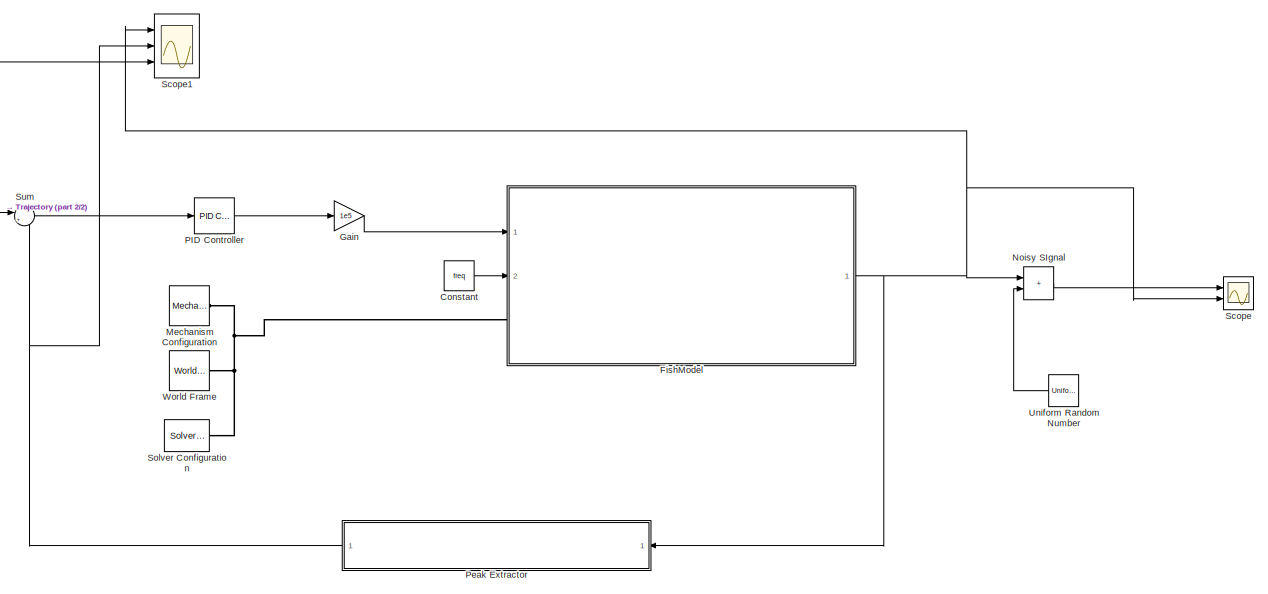
[diagram: root canvas - part 1/2, center side, full height]
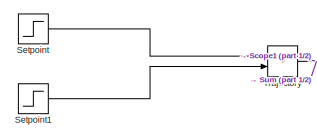
[diagram: root canvas - part 2/2, middle left region]
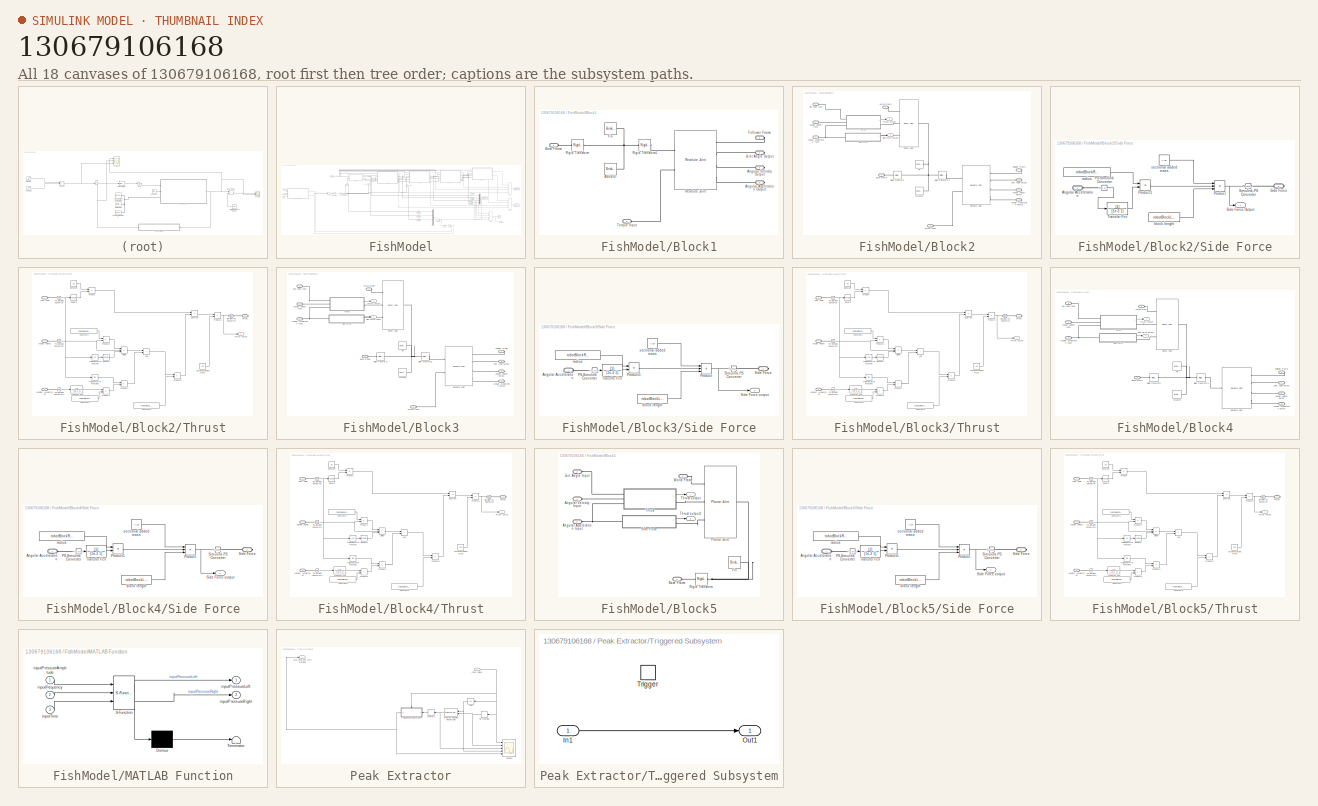
[diagram: thumbnail index - all 18 canvases of the model, root first then tree order]
MODEL slx_130679106168
KIND model
CONFIG AbsTol = auto
CONFIG EnableMultiTasking = off
CONFIG FixedStep = 1e-4
CONFIG InitFcn = initSoftFishHydrodynamicControl
CONFIG MaxStep = auto
CONFIG MinStep = auto
CONFIG RelTol = 1e-5
CONFIG SampleTimeConstraint = Unconstrained
CONFIG Solver = VariableStepAuto
CONFIG SolverName = VariableStepAuto
CONFIG StartTime = 0.0
CONFIG StopTime = 40
BLOCK [Constant] Constant
  Value = freq
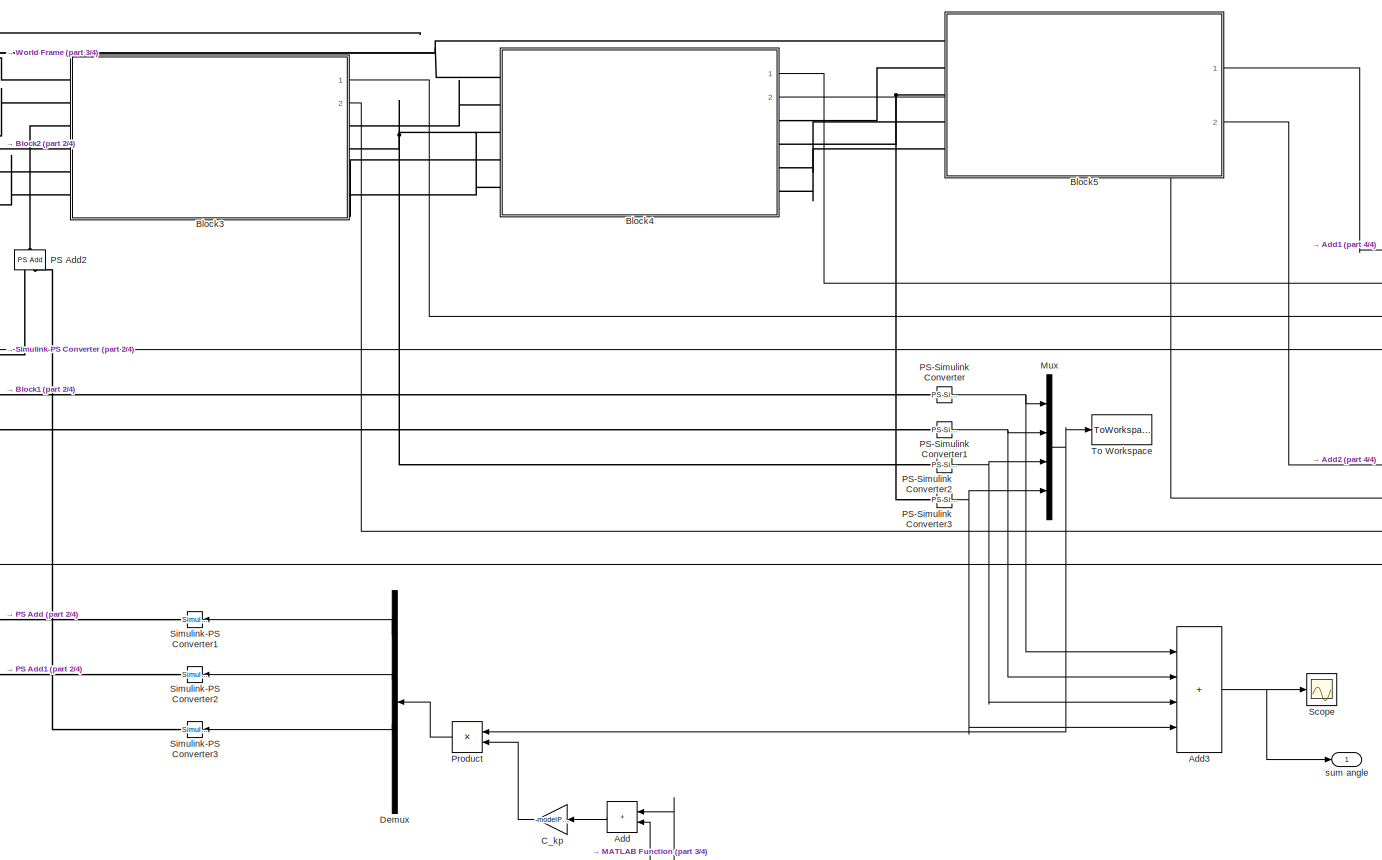
[diagram: FishModel - part 1/4, right side, full height]
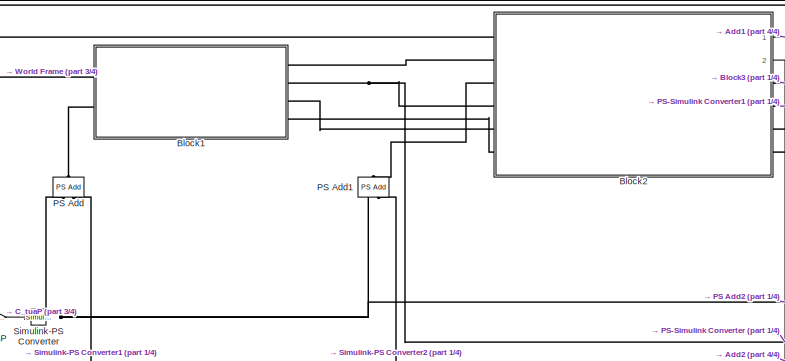
[diagram: FishModel - part 2/4, top center region]
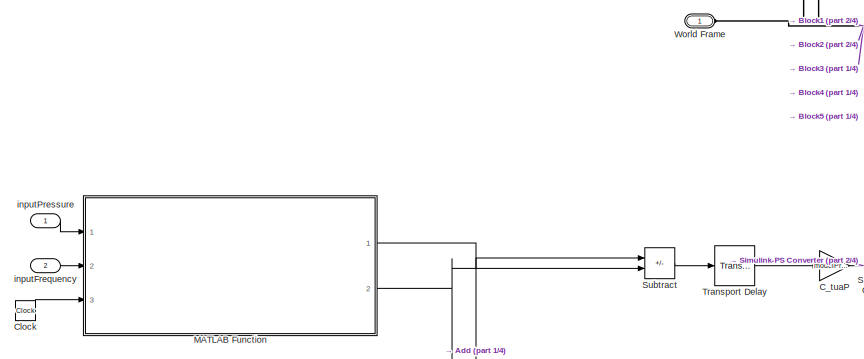
[diagram: FishModel - part 3/4, top left region]
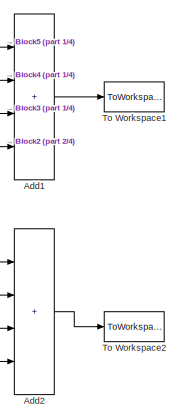
[diagram: FishModel - part 4/4, middle right region]
BLOCK [SubSystem] FishModel
  Ports = [2, 1, 0, 0, 0, 1]
  RequestExecContextInheritance = off
BLOCK [Sum] FishModel/Add
  IconShape = rectangular
  Ports = [2, 1]
BLOCK [Sum] FishModel/Add1
  IconShape = rectangular
  Inputs = ++++
  Ports = [4, 1]
BLOCK [Sum] FishModel/Add2
  IconShape = rectangular
  Inputs = ++++
  Ports = [4, 1]
BLOCK [Sum] FishModel/Add3
  IconShape = rectangular
  Inputs = ++++
  Ports = [4, 1]
BLOCK [SubSystem] FishModel/Block1
  Ports = [0, 0, 0, 0, 0, 2, 4]
  RequestExecContextInheritance = off
BLOCK [Reference] FishModel/Block1/Actuator  REF=sm_lib/Body Elements/Brick Solid
  Ports = [0, 0, 0, 0, 0, 0, 1]
  SourceBlock = sm_lib/Body Elements/Brick Solid
  SourceProductBaseCode = MS
  SourceType = Brick Solid
BLOCK [PMIOPort] FishModel/Block1/Angular Acceleration Output
  Port = 6
  Side = Right
BLOCK [PMIOPort] FishModel/Block1/Angular Velocity Output
  Port = 5
  Side = Right
BLOCK [PMIOPort] FishModel/Block1/Base Frame
  Side = Left
BLOCK [Reference] FishModel/Block1/Fin  REF=sm_lib/Body Elements/Brick Solid
  Ports = [0, 0, 0, 0, 0, 0, 1]
  SourceBlock = sm_lib/Body Elements/Brick Solid
  SourceProductBaseCode = MS
  SourceType = Brick Solid
BLOCK [PMIOPort] FishModel/Block1/Follower Frame
  Port = 2
  Side = Right
BLOCK [PMIOPort] FishModel/Block1/Joint Angle Output 
  Port = 4
  Side = Right
BLOCK [Reference] FishModel/Block1/Revolute Joint  REF=sm_lib/Joints/Revolute Joint
  Ports = [0, 0, 0, 0, 0, 2, 4]
  SourceBlock = sm_lib/Joints/Revolute Joint
  SourceProductBaseCode = MS
  SourceType = Revolute Joint
BLOCK [Reference] FishModel/Block1/Rigid Transform  REF=sm_lib/Frames and
Transforms/Rigid
Transform
  Ports = [0, 0, 0, 0, 0, 1, 1]
  SourceBlock = sm_lib/Frames and\nTransforms/Rigid\nTransform
  SourceProductBaseCode = MS
  SourceType = Rigid\nTransform
BLOCK [Reference] FishModel/Block1/Rigid Transform1  REF=sm_lib/Frames and
Transforms/Rigid
Transform
  Ports = [0, 0, 0, 0, 0, 1, 1]
  SourceBlock = sm_lib/Frames and\nTransforms/Rigid\nTransform
  SourceProductBaseCode = MS
  SourceType = Rigid\nTransform
BLOCK [PMIOPort] FishModel/Block1/Torque Input
  Port = 3
  Side = Left
BLOCK [SubSystem] FishModel/Block2
  PortSchema = {"entries":[{"content":{"sides":[{"content":{"connectorIds":["LConn1","LConn2","LConn3","LConn4","LConn5","LConn6"]},"type":"ConnectorPlacement.EquallySpacedRectSide","uuid":"5ebc700c-e1a0-4781-b293-4c4f671d1d7d"},{"content":{"connectorIds":["RConn1","RConn2","RConn3","RConn4","Out1","Out2"],"side":"RIGHT"},"type":"ConnectorPlacement.EquallySpacedRectSide","uuid":"b92a1279-a400-488f-b4a5-473275b38...<+333ch>
  Ports = [0, 2, 0, 0, 0, 6, 4]
  RequestExecContextInheritance = off
BLOCK [Reference] FishModel/Block2/Actuator  REF=sm_lib/Body Elements/Brick Solid
  Ports = [0, 0, 0, 0, 0, 0, 1]
  SourceBlock = sm_lib/Body Elements/Brick Solid
  SourceProductBaseCode = MS
  SourceType = Brick Solid
BLOCK [PMIOPort] FishModel/Block2/Angular Acceleration Input
  Port = 6
  Side = Left
BLOCK [PMIOPort] FishModel/Block2/Angular Acceleration Output
  Port = 10
  Side = Right
BLOCK [PMIOPort] FishModel/Block2/Angular Velocity Input
  Port = 5
  Side = Left
BLOCK [PMIOPort] FishModel/Block2/Angular Velocity Outpur
  Port = 9
  Side = Right
BLOCK [PMIOPort] FishModel/Block2/Base Frame
  Port = 2
  Side = Left
BLOCK [Reference] FishModel/Block2/Fin  REF=sm_lib/Body Elements/Brick Solid
  Ports = [0, 0, 0, 0, 0, 0, 1]
  SourceBlock = sm_lib/Body Elements/Brick Solid
  SourceProductBaseCode = MS
  SourceType = Brick Solid
BLOCK [PMIOPort] FishModel/Block2/Follower Frame
  Port = 7
  Side = Right
BLOCK [PMIOPort] FishModel/Block2/Join Angle Input
  Port = 4
  Side = Left
BLOCK [PMIOPort] FishModel/Block2/Joint Angle Output 
  Port = 8
  Side = Right
BLOCK [Reference] FishModel/Block2/Planar Joint  REF=sm_lib/Joints/Planar Joint
  Ports = [0, 0, 0, 0, 0, 3, 1]
  SourceBlock = sm_lib/Joints/Planar Joint
  SourceProductBaseCode = MS
  SourceType = Planar Joint
BLOCK [Reference] FishModel/Block2/Revolute Joint  REF=sm_lib/Joints/Revolute Joint
  Ports = [0, 0, 0, 0, 0, 2, 4]
  SourceBlock = sm_lib/Joints/Revolute Joint
  SourceProductBaseCode = MS
  SourceType = Revolute Joint
BLOCK [Reference] FishModel/Block2/Rigid Transform  REF=sm_lib/Frames and
Transforms/Rigid
Transform
  Ports = [0, 0, 0, 0, 0, 1, 1]
  SourceBlock = sm_lib/Frames and\nTransforms/Rigid\nTransform
  SourceProductBaseCode = MS
  SourceType = Rigid\nTransform
BLOCK [Reference] FishModel/Block2/Rigid Transform1  REF=sm_lib/Frames and
Transforms/Rigid
Transform
  Ports = [0, 0, 0, 0, 0, 1, 1]
  SourceBlock = sm_lib/Frames and\nTransforms/Rigid\nTransform
  SourceProductBaseCode = MS
  SourceType = Rigid\nTransform
BLOCK [SubSystem] FishModel/Block2/Side Force
  Ports = [0, 1, 0, 0, 0, 1, 1]
  RequestExecContextInheritance = off
BLOCK [Outport] FishModel/Block2/Side Force Output
  Port = 2
BLOCK [PMIOPort] FishModel/Block2/Side Force/Angular Acceleration
  Side = Left
BLOCK [Reference] FishModel/Block2/Side Force/PS-Simulink Converter  REF=nesl_utility/PS-Simulink
Converter
  Ports = [0, 1, 0, 0, 0, 1]
  SourceBlock = nesl_utility/PS-Simulink\nConverter
  SourceProductBaseCode = SS
  SourceType = PS-Simulink\nConverter
BLOCK [Product] FishModel/Block2/Side Force/Product
  Inputs = 3
  Ports = [3, 1]
BLOCK [Product] FishModel/Block2/Side Force/Product1
  Ports = [2, 1]
BLOCK [PMIOPort] FishModel/Block2/Side Force/Side Force
  Port = 2
  Side = Right
BLOCK [Outport] FishModel/Block2/Side Force/Side Force Output
BLOCK [Reference] FishModel/Block2/Side Force/Simulink-PS Converter  REF=nesl_utility/Simulink-PS
Converter
  Ports = [1, 0, 0, 0, 0, 0, 1]
  SourceBlock = nesl_utility/Simulink-PS\nConverter
  SourceProductBaseCode = SS
  SourceType = Simulink-PS\nConverter
BLOCK [TransferFcn] FishModel/Block2/Side Force/Transfer Fcn
  Denominator = [1e-3 1]
BLOCK [Constant] FishModel/Block2/Side Force/block length
  Value = robotBlockLength
BLOCK [Constant] FishModel/Block2/Side Force/radius
  Value = robotBlockRevoluteRadius
BLOCK [Constant] FishModel/Block2/Side Force/sectional added mass
  Value = -A33
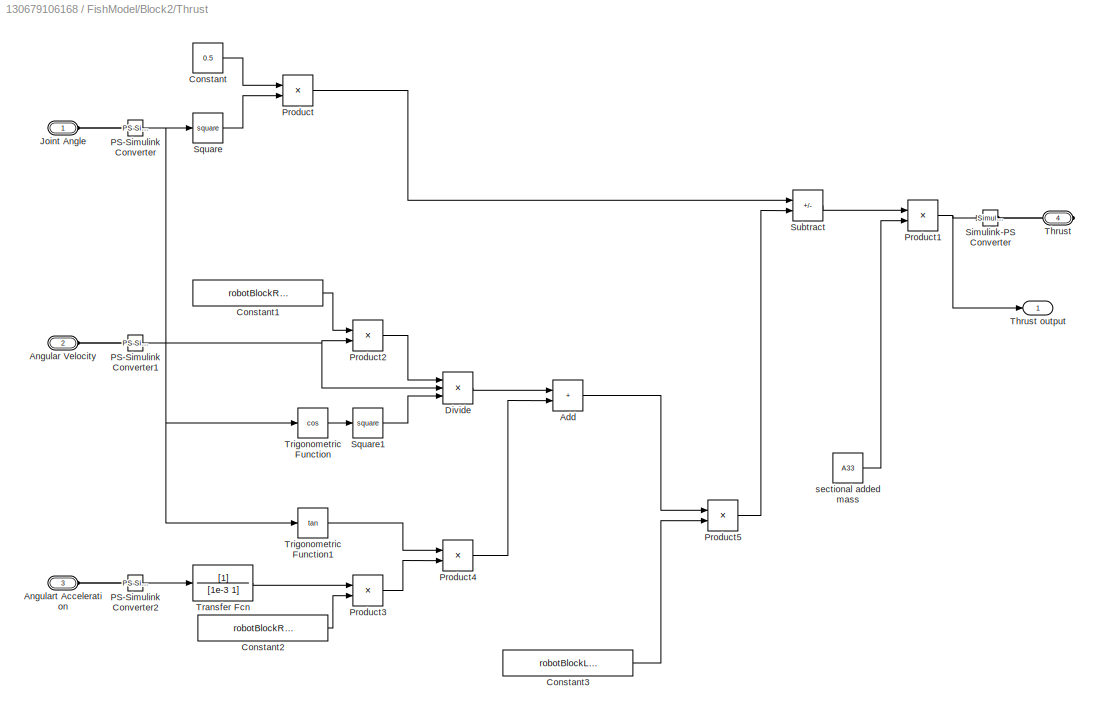
BLOCK [SubSystem] FishModel/Block2/Thrust
  Ports = [0, 1, 0, 0, 0, 3, 1]
  RequestExecContextInheritance = off
BLOCK [Outport] FishModel/Block2/Thrust output
BLOCK [Sum] FishModel/Block2/Thrust/Add
  IconShape = rectangular
  Ports = [2, 1]
BLOCK [PMIOPort] FishModel/Block2/Thrust/Angular Velocity
  Port = 2
  Side = Left
BLOCK [PMIOPort] FishModel/Block2/Thrust/Angulart Acceleration
  Port = 3
  Side = Left
BLOCK [Constant] FishModel/Block2/Thrust/Constant
  Value = 0.5
BLOCK [Constant] FishModel/Block2/Thrust/Constant1
  Value = robotBlockRevoluteRadius
BLOCK [Constant] FishModel/Block2/Thrust/Constant2
  Value = robotBlockRevoluteRadius
BLOCK [Constant] FishModel/Block2/Thrust/Constant3
  Value = robotBlockLength
BLOCK [Product] FishModel/Block2/Thrust/Divide
  Inputs = **/
  Ports = [3, 1]
BLOCK [PMIOPort] FishModel/Block2/Thrust/Joint Angle
  Side = Left
BLOCK [Reference] FishModel/Block2/Thrust/PS-Simulink Converter  REF=nesl_utility/PS-Simulink
Converter
  Ports = [0, 1, 0, 0, 0, 1]
  SourceBlock = nesl_utility/PS-Simulink\nConverter
  SourceProductBaseCode = SS
  SourceType = PS-Simulink\nConverter
BLOCK [Reference] FishModel/Block2/Thrust/PS-Simulink Converter1  REF=nesl_utility/PS-Simulink
Converter
  Ports = [0, 1, 0, 0, 0, 1]
  SourceBlock = nesl_utility/PS-Simulink\nConverter
  SourceProductBaseCode = SS
  SourceType = PS-Simulink\nConverter
BLOCK [Reference] FishModel/Block2/Thrust/PS-Simulink Converter2  REF=nesl_utility/PS-Simulink
Converter
  Ports = [0, 1, 0, 0, 0, 1]
  SourceBlock = nesl_utility/PS-Simulink\nConverter
  SourceProductBaseCode = SS
  SourceType = PS-Simulink\nConverter
BLOCK [Product] FishModel/Block2/Thrust/Product
  Ports = [2, 1]
BLOCK [Product] FishModel/Block2/Thrust/Product1
  Ports = [2, 1]
BLOCK [Product] FishModel/Block2/Thrust/Product2
  Ports = [2, 1]
BLOCK [Product] FishModel/Block2/Thrust/Product3
  Ports = [2, 1]
BLOCK [Product] FishModel/Block2/Thrust/Product4
  Ports = [2, 1]
BLOCK [Product] FishModel/Block2/Thrust/Product5
  Ports = [2, 1]
BLOCK [Reference] FishModel/Block2/Thrust/Simulink-PS Converter  REF=nesl_utility/Simulink-PS
Converter
  Ports = [1, 0, 0, 0, 0, 0, 1]
  SourceBlock = nesl_utility/Simulink-PS\nConverter
  SourceProductBaseCode = SS
  SourceType = Simulink-PS\nConverter
BLOCK [Math] FishModel/Block2/Thrust/Square
  Operator = square
  Ports = [1, 1]
BLOCK [Math] FishModel/Block2/Thrust/Square1
  Operator = square
  Ports = [1, 1]
BLOCK [Sum] FishModel/Block2/Thrust/Subtract
  IconShape = rectangular
  Inputs = +-
  Ports = [2, 1]
BLOCK [PMIOPort] FishModel/Block2/Thrust/Thrust
  Port = 4
  Side = Right
BLOCK [Outport] FishModel/Block2/Thrust/Thrust output
BLOCK [TransferFcn] FishModel/Block2/Thrust/Transfer Fcn
  Denominator = [1e-3 1]
BLOCK [Trigonometry] FishModel/Block2/Thrust/Trigonometric Function
  Operator = cos
  Ports = [1, 1]
BLOCK [Trigonometry] FishModel/Block2/Thrust/Trigonometric Function1
  Operator = tan
  Ports = [1, 1]
BLOCK [Constant] FishModel/Block2/Thrust/sectional added mass
  Value = A33
BLOCK [PMIOPort] FishModel/Block2/Torque Input
  Port = 3
  Side = Left
BLOCK [PMIOPort] FishModel/Block2/World Frame
  Side = Left
BLOCK [SubSystem] FishModel/Block3
  PortSchema = {"entries":[{"content":{"sides":[{"content":{"connectorIds":["LConn1","LConn2","LConn3","LConn4","LConn5","LConn6"]},"type":"ConnectorPlacement.EquallySpacedRectSide","uuid":"4bf02832-9aaa-445d-b17a-b47938d968bc"},{"content":{"connectorIds":["RConn1","RConn2","RConn3","RConn4","Out1","Out2"],"side":"RIGHT"},"type":"ConnectorPlacement.EquallySpacedRectSide","uuid":"5c54c9be-a256-435b-a4c8-a301a8a71...<+333ch>
  Ports = [0, 2, 0, 0, 0, 6, 4]
  RequestExecContextInheritance = off
BLOCK [Reference] FishModel/Block3/Actuator  REF=sm_lib/Body Elements/Brick Solid
  Ports = [0, 0, 0, 0, 0, 0, 1]
  SourceBlock = sm_lib/Body Elements/Brick Solid
  SourceProductBaseCode = MS
  SourceType = Brick Solid
BLOCK [PMIOPort] FishModel/Block3/Angular Acceleration Input
  Port = 6
  Side = Left
BLOCK [PMIOPort] FishModel/Block3/Angular Acceleration Output
  Port = 10
  Side = Right
BLOCK [PMIOPort] FishModel/Block3/Angular Velocity Input
  Port = 5
  Side = Left
BLOCK [PMIOPort] FishModel/Block3/Angular Velocity Outpur
  Port = 9
  Side = Right
BLOCK [PMIOPort] FishModel/Block3/Base Frame
  Port = 2
  Side = Left
BLOCK [Reference] FishModel/Block3/Fin  REF=sm_lib/Body Elements/Brick Solid
  Ports = [0, 0, 0, 0, 0, 0, 1]
  SourceBlock = sm_lib/Body Elements/Brick Solid
  SourceProductBaseCode = MS
  SourceType = Brick Solid
BLOCK [PMIOPort] FishModel/Block3/Follower Frame
  Port = 7
  Side = Right
BLOCK [PMIOPort] FishModel/Block3/Join Angle Input
  Port = 4
  Side = Left
BLOCK [PMIOPort] FishModel/Block3/Joint Angle Output 
  Port = 8
  Side = Right
BLOCK [Reference] FishModel/Block3/Planar Joint  REF=sm_lib/Joints/Planar Joint
  Ports = [0, 0, 0, 0, 0, 3, 1]
  SourceBlock = sm_lib/Joints/Planar Joint
  SourceProductBaseCode = MS
  SourceType = Planar Joint
BLOCK [Reference] FishModel/Block3/Revolute Joint  REF=sm_lib/Joints/Revolute Joint
  Ports = [0, 0, 0, 0, 0, 2, 4]
  SourceBlock = sm_lib/Joints/Revolute Joint
  SourceProductBaseCode = MS
  SourceType = Revolute Joint
BLOCK [Reference] FishModel/Block3/Rigid Transform  REF=sm_lib/Frames and
Transforms/Rigid
Transform
  Ports = [0, 0, 0, 0, 0, 1, 1]
  SourceBlock = sm_lib/Frames and\nTransforms/Rigid\nTransform
  SourceProductBaseCode = MS
  SourceType = Rigid\nTransform
BLOCK [Reference] FishModel/Block3/Rigid Transform1  REF=sm_lib/Frames and
Transforms/Rigid
Transform
  Ports = [0, 0, 0, 0, 0, 1, 1]
  SourceBlock = sm_lib/Frames and\nTransforms/Rigid\nTransform
  SourceProductBaseCode = MS
  SourceType = Rigid\nTransform
BLOCK [SubSystem] FishModel/Block3/Side Force
  Ports = [0, 1, 0, 0, 0, 1, 1]
  RequestExecContextInheritance = off
BLOCK [Outport] FishModel/Block3/Side Force Ouput
  Port = 2
BLOCK [PMIOPort] FishModel/Block3/Side Force/Angular Acceleration
  Side = Left
BLOCK [Reference] FishModel/Block3/Side Force/PS-Simulink Converter  REF=nesl_utility/PS-Simulink
Converter
  Ports = [0, 1, 0, 0, 0, 1]
  SourceBlock = nesl_utility/PS-Simulink\nConverter
  SourceProductBaseCode = SS
  SourceType = PS-Simulink\nConverter
BLOCK [Product] FishModel/Block3/Side Force/Product
  Inputs = 3
  Ports = [3, 1]
BLOCK [Product] FishModel/Block3/Side Force/Product1
  Ports = [2, 1]
BLOCK [PMIOPort] FishModel/Block3/Side Force/Side Force
  Port = 2
  Side = Right
BLOCK [Outport] FishModel/Block3/Side Force/Side Force output
BLOCK [Reference] FishModel/Block3/Side Force/Simulink-PS Converter  REF=nesl_utility/Simulink-PS
Converter
  Ports = [1, 0, 0, 0, 0, 0, 1]
  SourceBlock = nesl_utility/Simulink-PS\nConverter
  SourceProductBaseCode = SS
  SourceType = Simulink-PS\nConverter
BLOCK [TransferFcn] FishModel/Block3/Side Force/Transfer Fcn
  Denominator = [1e-3 1]
BLOCK [Constant] FishModel/Block3/Side Force/block length
  Value = robotBlockLength
BLOCK [Constant] FishModel/Block3/Side Force/radius
  Value = robotBlockRevoluteRadius
BLOCK [Constant] FishModel/Block3/Side Force/sectional added mass
  Value = -A33
BLOCK [SubSystem] FishModel/Block3/Thrust
  Ports = [0, 1, 0, 0, 0, 3, 1]
  RequestExecContextInheritance = off
BLOCK [Outport] FishModel/Block3/Thrust output
BLOCK [Sum] FishModel/Block3/Thrust/Add
  IconShape = rectangular
  Ports = [2, 1]
BLOCK [PMIOPort] FishModel/Block3/Thrust/Angular Velocity
  Port = 2
  Side = Left
BLOCK [PMIOPort] FishModel/Block3/Thrust/Angulart Acceleration
  Port = 3
  Side = Left
BLOCK [Constant] FishModel/Block3/Thrust/Constant
  Value = 0.5
BLOCK [Constant] FishModel/Block3/Thrust/Constant1
  Value = robotBlockRevoluteRadius
BLOCK [Constant] FishModel/Block3/Thrust/Constant2
  Value = robotBlockRevoluteRadius
BLOCK [Constant] FishModel/Block3/Thrust/Constant3
  Value = robotBlockLength
BLOCK [Product] FishModel/Block3/Thrust/Divide
  Inputs = **/
  Ports = [3, 1]
BLOCK [PMIOPort] FishModel/Block3/Thrust/Joint Angle
  Side = Left
BLOCK [Reference] FishModel/Block3/Thrust/PS-Simulink Converter  REF=nesl_utility/PS-Simulink
Converter
  Ports = [0, 1, 0, 0, 0, 1]
  SourceBlock = nesl_utility/PS-Simulink\nConverter
  SourceProductBaseCode = SS
  SourceType = PS-Simulink\nConverter
BLOCK [Reference] FishModel/Block3/Thrust/PS-Simulink Converter1  REF=nesl_utility/PS-Simulink
Converter
  Ports = [0, 1, 0, 0, 0, 1]
  SourceBlock = nesl_utility/PS-Simulink\nConverter
  SourceProductBaseCode = SS
  SourceType = PS-Simulink\nConverter
BLOCK [Reference] FishModel/Block3/Thrust/PS-Simulink Converter2  REF=nesl_utility/PS-Simulink
Converter
  Ports = [0, 1, 0, 0, 0, 1]
  SourceBlock = nesl_utility/PS-Simulink\nConverter
  SourceProductBaseCode = SS
  SourceType = PS-Simulink\nConverter
BLOCK [Product] FishModel/Block3/Thrust/Product
  Ports = [2, 1]
BLOCK [Product] FishModel/Block3/Thrust/Product1
  Ports = [2, 1]
BLOCK [Product] FishModel/Block3/Thrust/Product2
  Ports = [2, 1]
BLOCK [Product] FishModel/Block3/Thrust/Product3
  Ports = [2, 1]
BLOCK [Product] FishModel/Block3/Thrust/Product4
  Ports = [2, 1]
BLOCK [Product] FishModel/Block3/Thrust/Product5
  Ports = [2, 1]
BLOCK [Reference] FishModel/Block3/Thrust/Simulink-PS Converter  REF=nesl_utility/Simulink-PS
Converter
  Ports = [1, 0, 0, 0, 0, 0, 1]
  SourceBlock = nesl_utility/Simulink-PS\nConverter
  SourceProductBaseCode = SS
  SourceType = Simulink-PS\nConverter
BLOCK [Math] FishModel/Block3/Thrust/Square
  Operator = square
  Ports = [1, 1]
BLOCK [Math] FishModel/Block3/Thrust/Square1
  Operator = square
  Ports = [1, 1]
BLOCK [Sum] FishModel/Block3/Thrust/Subtract
  IconShape = rectangular
  Inputs = +-
  Ports = [2, 1]
BLOCK [PMIOPort] FishModel/Block3/Thrust/Thrust
  Port = 4
  Side = Right
BLOCK [Outport] FishModel/Block3/Thrust/Thrust output
BLOCK [TransferFcn] FishModel/Block3/Thrust/Transfer Fcn
  Denominator = [1e-3 1]
BLOCK [Trigonometry] FishModel/Block3/Thrust/Trigonometric Function
  Operator = cos
  Ports = [1, 1]
BLOCK [Trigonometry] FishModel/Block3/Thrust/Trigonometric Function1
  Operator = tan
  Ports = [1, 1]
BLOCK [Constant] FishModel/Block3/Thrust/sectional added mass
  Value = A33
BLOCK [PMIOPort] FishModel/Block3/Torque Input
  Port = 3
  Side = Left
BLOCK [PMIOPort] FishModel/Block3/World Frame
  Side = Left
BLOCK [SubSystem] FishModel/Block4
  PortSchema = {"entries":[{"content":{"sides":[{"content":{"connectorIds":["LConn1","LConn2","LConn3","LConn4","LConn5"]},"type":"ConnectorPlacement.EquallySpacedRectSide","uuid":"983de15f-af03-41ca-a1ab-b1d4b5398ede"},{"content":{"connectorIds":["RConn1","RConn2","RConn3","RConn4","Out1","Out2"],"side":"RIGHT"},"type":"ConnectorPlacement.EquallySpacedRectSide","uuid":"e6a9d96e-84e1-42ce-bc33-32721e41e318"},{"c...<+324ch>
  Ports = [0, 2, 0, 0, 0, 5, 4]
  RequestExecContextInheritance = off
BLOCK [Reference] FishModel/Block4/Actuator  REF=sm_lib/Body Elements/Brick Solid
  Ports = [0, 0, 0, 0, 0, 0, 1]
  SourceBlock = sm_lib/Body Elements/Brick Solid
  SourceProductBaseCode = MS
  SourceType = Brick Solid
BLOCK [PMIOPort] FishModel/Block4/Angular Acceleration Input
  Port = 5
  Side = Left
BLOCK [PMIOPort] FishModel/Block4/Angular Acceleration Output
  Port = 9
  Side = Right
BLOCK [PMIOPort] FishModel/Block4/Angular Velocity Input
  Port = 4
  Side = Left
BLOCK [PMIOPort] FishModel/Block4/Angular Velocity Outpur
  Port = 8
  Side = Right
BLOCK [PMIOPort] FishModel/Block4/Base Frame
  Port = 2
  Side = Left
BLOCK [Reference] FishModel/Block4/Fin  REF=sm_lib/Body Elements/Brick Solid
  Ports = [0, 0, 0, 0, 0, 0, 1]
  SourceBlock = sm_lib/Body Elements/Brick Solid
  SourceProductBaseCode = MS
  SourceType = Brick Solid
BLOCK [PMIOPort] FishModel/Block4/Follower Frame
  Port = 6
  Side = Right
BLOCK [PMIOPort] FishModel/Block4/Join Angle Input
  Port = 3
  Side = Left
BLOCK [PMIOPort] FishModel/Block4/Joint Angle Output 
  Port = 7
  Side = Right
BLOCK [Reference] FishModel/Block4/Planar Joint  REF=sm_lib/Joints/Planar Joint
  Ports = [0, 0, 0, 0, 0, 3, 1]
  SourceBlock = sm_lib/Joints/Planar Joint
  SourceProductBaseCode = MS
  SourceType = Planar Joint
BLOCK [Reference] FishModel/Block4/Revolute Joint  REF=sm_lib/Joints/Revolute Joint
  Ports = [0, 0, 0, 0, 0, 1, 4]
  SourceBlock = sm_lib/Joints/Revolute Joint
  SourceProductBaseCode = MS
  SourceType = Revolute Joint
BLOCK [Reference] FishModel/Block4/Rigid Transform  REF=sm_lib/Frames and
Transforms/Rigid
Transform
  Ports = [0, 0, 0, 0, 0, 1, 1]
  SourceBlock = sm_lib/Frames and\nTransforms/Rigid\nTransform
  SourceProductBaseCode = MS
  SourceType = Rigid\nTransform
BLOCK [Reference] FishModel/Block4/Rigid Transform1  REF=sm_lib/Frames and
Transforms/Rigid
Transform
  Ports = [0, 0, 0, 0, 0, 1, 1]
  SourceBlock = sm_lib/Frames and\nTransforms/Rigid\nTransform
  SourceProductBaseCode = MS
  SourceType = Rigid\nTransform
BLOCK [SubSystem] FishModel/Block4/Side Force
  Ports = [0, 1, 0, 0, 0, 1, 1]
  RequestExecContextInheritance = off
BLOCK [Outport] FishModel/Block4/Side Force Output
  Port = 2
BLOCK [PMIOPort] FishModel/Block4/Side Force/Angular Acceleration
  Side = Left
BLOCK [Reference] FishModel/Block4/Side Force/PS-Simulink Converter  REF=nesl_utility/PS-Simulink
Converter
  Ports = [0, 1, 0, 0, 0, 1]
  SourceBlock = nesl_utility/PS-Simulink\nConverter
  SourceProductBaseCode = SS
  SourceType = PS-Simulink\nConverter
BLOCK [Product] FishModel/Block4/Side Force/Product
  Inputs = 3
  Ports = [3, 1]
BLOCK [Product] FishModel/Block4/Side Force/Product1
  Ports = [2, 1]
BLOCK [PMIOPort] FishModel/Block4/Side Force/Side Force
  Port = 2
  Side = Right
BLOCK [Outport] FishModel/Block4/Side Force/Side Force output
BLOCK [Reference] FishModel/Block4/Side Force/Simulink-PS Converter  REF=nesl_utility/Simulink-PS
Converter
  Ports = [1, 0, 0, 0, 0, 0, 1]
  SourceBlock = nesl_utility/Simulink-PS\nConverter
  SourceProductBaseCode = SS
  SourceType = Simulink-PS\nConverter
BLOCK [TransferFcn] FishModel/Block4/Side Force/Transfer Fcn
  Denominator = [1e-3 1]
BLOCK [Constant] FishModel/Block4/Side Force/block length
  Value = robotBlockLength
BLOCK [Constant] FishModel/Block4/Side Force/radius
  Value = robotBlockRevoluteRadius
BLOCK [Constant] FishModel/Block4/Side Force/sectional added mass
  Value = -A33
BLOCK [SubSystem] FishModel/Block4/Thrust
  Ports = [0, 1, 0, 0, 0, 3, 1]
  RequestExecContextInheritance = off
BLOCK [Outport] FishModel/Block4/Thrust output
BLOCK [Sum] FishModel/Block4/Thrust/Add
  IconShape = rectangular
  Ports = [2, 1]
BLOCK [PMIOPort] FishModel/Block4/Thrust/Angular Velocity
  Port = 2
  Side = Left
BLOCK [PMIOPort] FishModel/Block4/Thrust/Angulart Acceleration
  Port = 3
  Side = Left
BLOCK [Constant] FishModel/Block4/Thrust/Constant
  Value = 0.5
BLOCK [Constant] FishModel/Block4/Thrust/Constant1
  Value = robotBlockRevoluteRadius
BLOCK [Constant] FishModel/Block4/Thrust/Constant2
  Value = robotBlockRevoluteRadius
BLOCK [Constant] FishModel/Block4/Thrust/Constant3
  Value = robotBlockLength
BLOCK [Product] FishModel/Block4/Thrust/Divide
  Inputs = **/
  Ports = [3, 1]
BLOCK [PMIOPort] FishModel/Block4/Thrust/Joint Angle
  Side = Left
BLOCK [Reference] FishModel/Block4/Thrust/PS-Simulink Converter  REF=nesl_utility/PS-Simulink
Converter
  Ports = [0, 1, 0, 0, 0, 1]
  SourceBlock = nesl_utility/PS-Simulink\nConverter
  SourceProductBaseCode = SS
  SourceType = PS-Simulink\nConverter
BLOCK [Reference] FishModel/Block4/Thrust/PS-Simulink Converter1  REF=nesl_utility/PS-Simulink
Converter
  Ports = [0, 1, 0, 0, 0, 1]
  SourceBlock = nesl_utility/PS-Simulink\nConverter
  SourceProductBaseCode = SS
  SourceType = PS-Simulink\nConverter
BLOCK [Reference] FishModel/Block4/Thrust/PS-Simulink Converter2  REF=nesl_utility/PS-Simulink
Converter
  Ports = [0, 1, 0, 0, 0, 1]
  SourceBlock = nesl_utility/PS-Simulink\nConverter
  SourceProductBaseCode = SS
  SourceType = PS-Simulink\nConverter
BLOCK [Product] FishModel/Block4/Thrust/Product
  Ports = [2, 1]
BLOCK [Product] FishModel/Block4/Thrust/Product1
  Ports = [2, 1]
BLOCK [Product] FishModel/Block4/Thrust/Product2
  Ports = [2, 1]
BLOCK [Product] FishModel/Block4/Thrust/Product3
  Ports = [2, 1]
BLOCK [Product] FishModel/Block4/Thrust/Product4
  Ports = [2, 1]
BLOCK [Product] FishModel/Block4/Thrust/Product5
  Ports = [2, 1]
BLOCK [Reference] FishModel/Block4/Thrust/Simulink-PS Converter  REF=nesl_utility/Simulink-PS
Converter
  Ports = [1, 0, 0, 0, 0, 0, 1]
  SourceBlock = nesl_utility/Simulink-PS\nConverter
  SourceProductBaseCode = SS
  SourceType = Simulink-PS\nConverter
BLOCK [Math] FishModel/Block4/Thrust/Square
  Operator = square
  Ports = [1, 1]
BLOCK [Math] FishModel/Block4/Thrust/Square1
  Operator = square
  Ports = [1, 1]
BLOCK [Sum] FishModel/Block4/Thrust/Subtract
  IconShape = rectangular
  Inputs = +-
  Ports = [2, 1]
BLOCK [PMIOPort] FishModel/Block4/Thrust/Thrust
  Port = 4
  Side = Right
BLOCK [Outport] FishModel/Block4/Thrust/Thrust output
BLOCK [TransferFcn] FishModel/Block4/Thrust/Transfer Fcn
  Denominator = [1e-3 1]
BLOCK [Trigonometry] FishModel/Block4/Thrust/Trigonometric Function
  Operator = cos
  Ports = [1, 1]
BLOCK [Trigonometry] FishModel/Block4/Thrust/Trigonometric Function1
  Operator = tan
  Ports = [1, 1]
BLOCK [Constant] FishModel/Block4/Thrust/sectional added mass
  Value = A33
BLOCK [PMIOPort] FishModel/Block4/World Frame
  Side = Left
BLOCK [SubSystem] FishModel/Block5
  Ports = [0, 2, 0, 0, 0, 5]
  RequestExecContextInheritance = off
BLOCK [PMIOPort] FishModel/Block5/Angular Acceleration Input
  Port = 5
  Side = Left
BLOCK [PMIOPort] FishModel/Block5/Angular Velocity Input
  Port = 4
  Side = Left
BLOCK [PMIOPort] FishModel/Block5/Base Frame
  Port = 2
  Side = Left
BLOCK [Reference] FishModel/Block5/Fin  REF=sm_lib/Body Elements/Brick Solid
  Ports = [0, 0, 0, 0, 0, 0, 1]
  SourceBlock = sm_lib/Body Elements/Brick Solid
  SourceProductBaseCode = MS
  SourceType = Brick Solid
BLOCK [PMIOPort] FishModel/Block5/Join Angle Input
  Port = 3
  Side = Left
BLOCK [Reference] FishModel/Block5/Planar Joint  REF=sm_lib/Joints/Planar Joint
  Ports = [0, 0, 0, 0, 0, 3, 1]
  SourceBlock = sm_lib/Joints/Planar Joint
  SourceProductBaseCode = MS
  SourceType = Planar Joint
BLOCK [Reference] FishModel/Block5/Rigid Transform  REF=sm_lib/Frames and
Transforms/Rigid
Transform
  Ports = [0, 0, 0, 0, 0, 1, 1]
  SourceBlock = sm_lib/Frames and\nTransforms/Rigid\nTransform
  SourceProductBaseCode = MS
  SourceType = Rigid\nTransform
BLOCK [SubSystem] FishModel/Block5/Side Force
  Ports = [0, 1, 0, 0, 0, 1, 1]
  RequestExecContextInheritance = off
BLOCK [PMIOPort] FishModel/Block5/Side Force/Angular Acceleration
  Side = Left
BLOCK [Reference] FishModel/Block5/Side Force/PS-Simulink Converter  REF=nesl_utility/PS-Simulink
Converter
  Ports = [0, 1, 0, 0, 0, 1]
  SourceBlock = nesl_utility/PS-Simulink\nConverter
  SourceProductBaseCode = SS
  SourceType = PS-Simulink\nConverter
BLOCK [Product] FishModel/Block5/Side Force/Product
  Inputs = 3
  Ports = [3, 1]
BLOCK [Product] FishModel/Block5/Side Force/Product1
  Ports = [2, 1]
BLOCK [PMIOPort] FishModel/Block5/Side Force/Side Force
  Port = 2
  Side = Right
BLOCK [Outport] FishModel/Block5/Side Force/Side Force output
BLOCK [Reference] FishModel/Block5/Side Force/Simulink-PS Converter  REF=nesl_utility/Simulink-PS
Converter
  Ports = [1, 0, 0, 0, 0, 0, 1]
  SourceBlock = nesl_utility/Simulink-PS\nConverter
  SourceProductBaseCode = SS
  SourceType = Simulink-PS\nConverter
BLOCK [TransferFcn] FishModel/Block5/Side Force/Transfer Fcn
  Denominator = [1e-3 1]
BLOCK [Constant] FishModel/Block5/Side Force/block length
  Value = robotBlockLength
BLOCK [Constant] FishModel/Block5/Side Force/radius
  Value = robotBlockRevoluteRadius
BLOCK [Constant] FishModel/Block5/Side Force/sectional added mass
  Value = -A33
BLOCK [SubSystem] FishModel/Block5/Thrust
  Ports = [0, 1, 0, 0, 0, 3, 1]
  RequestExecContextInheritance = off
BLOCK [Outport] FishModel/Block5/Thrust output
BLOCK [Outport] FishModel/Block5/Thrust output1
  Port = 2
BLOCK [Sum] FishModel/Block5/Thrust/Add
  IconShape = rectangular
  Ports = [2, 1]
BLOCK [PMIOPort] FishModel/Block5/Thrust/Angular Velocity
  Port = 2
  Side = Left
BLOCK [PMIOPort] FishModel/Block5/Thrust/Angulart Acceleration
  Port = 3
  Side = Left
BLOCK [Constant] FishModel/Block5/Thrust/Constant
  Value = 0.5
BLOCK [Constant] FishModel/Block5/Thrust/Constant1
  Value = robotBlockRevoluteRadius
BLOCK [Constant] FishModel/Block5/Thrust/Constant2
  Value = robotBlockRevoluteRadius
BLOCK [Constant] FishModel/Block5/Thrust/Constant3
  Value = robotBlockLength
BLOCK [Product] FishModel/Block5/Thrust/Divide
  Inputs = **/
  Ports = [3, 1]
BLOCK [PMIOPort] FishModel/Block5/Thrust/Joint Angle
  Side = Left
BLOCK [Reference] FishModel/Block5/Thrust/PS-Simulink Converter  REF=nesl_utility/PS-Simulink
Converter
  Ports = [0, 1, 0, 0, 0, 1]
  SourceBlock = nesl_utility/PS-Simulink\nConverter
  SourceProductBaseCode = SS
  SourceType = PS-Simulink\nConverter
BLOCK [Reference] FishModel/Block5/Thrust/PS-Simulink Converter1  REF=nesl_utility/PS-Simulink
Converter
  Ports = [0, 1, 0, 0, 0, 1]
  SourceBlock = nesl_utility/PS-Simulink\nConverter
  SourceProductBaseCode = SS
  SourceType = PS-Simulink\nConverter
BLOCK [Reference] FishModel/Block5/Thrust/PS-Simulink Converter2  REF=nesl_utility/PS-Simulink
Converter
  Ports = [0, 1, 0, 0, 0, 1]
  SourceBlock = nesl_utility/PS-Simulink\nConverter
  SourceProductBaseCode = SS
  SourceType = PS-Simulink\nConverter
BLOCK [Product] FishModel/Block5/Thrust/Product
  Ports = [2, 1]
BLOCK [Product] FishModel/Block5/Thrust/Product1
  Ports = [2, 1]
BLOCK [Product] FishModel/Block5/Thrust/Product2
  Ports = [2, 1]
BLOCK [Product] FishModel/Block5/Thrust/Product3
  Ports = [2, 1]
BLOCK [Product] FishModel/Block5/Thrust/Product4
  Ports = [2, 1]
BLOCK [Product] FishModel/Block5/Thrust/Product5
  Ports = [2, 1]
BLOCK [Reference] FishModel/Block5/Thrust/Simulink-PS Converter  REF=nesl_utility/Simulink-PS
Converter
  Ports = [1, 0, 0, 0, 0, 0, 1]
  SourceBlock = nesl_utility/Simulink-PS\nConverter
  SourceProductBaseCode = SS
  SourceType = Simulink-PS\nConverter
BLOCK [Math] FishModel/Block5/Thrust/Square
  Operator = square
  Ports = [1, 1]
BLOCK [Math] FishModel/Block5/Thrust/Square1
  Operator = square
  Ports = [1, 1]
BLOCK [Sum] FishModel/Block5/Thrust/Subtract
  IconShape = rectangular
  Inputs = +-
  Ports = [2, 1]
BLOCK [PMIOPort] FishModel/Block5/Thrust/Thrust
  Port = 4
  Side = Right
BLOCK [Outport] FishModel/Block5/Thrust/Thrust output
BLOCK [TransferFcn] FishModel/Block5/Thrust/Transfer Fcn
  Denominator = [1e-3 1]
BLOCK [Trigonometry] FishModel/Block5/Thrust/Trigonometric Function
  Operator = cos
  Ports = [1, 1]
BLOCK [Trigonometry] FishModel/Block5/Thrust/Trigonometric Function1
  Operator = tan
  Ports = [1, 1]
BLOCK [Constant] FishModel/Block5/Thrust/sectional added mass
  Value = A33
BLOCK [PMIOPort] FishModel/Block5/World Frame
  Side = Left
BLOCK [Gain] FishModel/C_kp
  Gain = -modelPressureStiffness
BLOCK [Gain] FishModel/C_tuaP
  Gain = modelPressureCoefficient
BLOCK [Clock] FishModel/Clock
BLOCK [Demux] FishModel/Demux
  Ports = [1, 4]
BLOCK [SubSystem] FishModel/MATLAB Function
  ErrorFcn = Stateflow.Translate.translate
  PermitHierarchicalResolution = ExplicitOnly
  Ports = [3, 2]
  RequestExecContextInheritance = off
  SFBlockType = MATLAB Function
  TreatAsAtomicUnit = on
BLOCK [Demux] FishModel/MATLAB Function/ Demux 
  Outputs = 1
  Ports = [1, 1]
BLOCK [S-Function] FishModel/MATLAB Function/ SFunction 
  EnableBusSupport = on
  FunctionName = sf_sfun
  PortCounts = [3 3]
  Ports = [3, 3]
  SFcnIsStateOwnerBlock = off
  SFunctionDeploymentMode = off
  Tag = Stateflow S-Function 2
BLOCK [Terminator] FishModel/MATLAB Function/ Terminator 
BLOCK [Inport] FishModel/MATLAB Function/inputFrequency
  Port = 2
BLOCK [Inport] FishModel/MATLAB Function/inputPressureAmplitude
BLOCK [Outport] FishModel/MATLAB Function/inputPressureLeft
BLOCK [Outport] FishModel/MATLAB Function/inputPressureRight
  Port = 2
BLOCK [Inport] FishModel/MATLAB Function/inputTime
  Port = 3
BLOCK [Mux] FishModel/Mux
  DisplayOption = bar
  Ports = [4, 1]
BLOCK [Reference] FishModel/PS Add  REF=fl_lib/Physical Signals/Functions/PS Add
  NameLocation = right
  Ports = [0, 0, 0, 0, 0, 2, 1]
  SourceBlock = fl_lib/Physical Signals/Functions/PS Add
  SourceProductBaseCode = SS
  SourceType = PS Add
BLOCK [Reference] FishModel/PS Add1  REF=fl_lib/Physical Signals/Functions/PS Add
  NameLocation = right
  Ports = [0, 0, 0, 0, 0, 2, 1]
  SourceBlock = fl_lib/Physical Signals/Functions/PS Add
  SourceProductBaseCode = SS
  SourceType = PS Add
BLOCK [Reference] FishModel/PS Add2  REF=fl_lib/Physical Signals/Functions/PS Add
  NameLocation = right
  Ports = [0, 0, 0, 0, 0, 2, 1]
  SourceBlock = fl_lib/Physical Signals/Functions/PS Add
  SourceProductBaseCode = SS
  SourceType = PS Add
BLOCK [Reference] FishModel/PS-Simulink Converter  REF=nesl_utility/PS-Simulink
Converter
  Ports = [0, 1, 0, 0, 0, 1]
  SourceBlock = nesl_utility/PS-Simulink\nConverter
  SourceProductBaseCode = SS
  SourceType = PS-Simulink\nConverter
BLOCK [Reference] FishModel/PS-Simulink Converter1  REF=nesl_utility/PS-Simulink
Converter
  Ports = [0, 1, 0, 0, 0, 1]
  SourceBlock = nesl_utility/PS-Simulink\nConverter
  SourceProductBaseCode = SS
  SourceType = PS-Simulink\nConverter
BLOCK [Reference] FishModel/PS-Simulink Converter2  REF=nesl_utility/PS-Simulink
Converter
  Ports = [0, 1, 0, 0, 0, 1]
  SourceBlock = nesl_utility/PS-Simulink\nConverter
  SourceProductBaseCode = SS
  SourceType = PS-Simulink\nConverter
BLOCK [Reference] FishModel/PS-Simulink Converter3  REF=nesl_utility/PS-Simulink
Converter
  Ports = [0, 1, 0, 0, 0, 1]
  SourceBlock = nesl_utility/PS-Simulink\nConverter
  SourceProductBaseCode = SS
  SourceType = PS-Simulink\nConverter
BLOCK [Product] FishModel/Product
  Ports = [2, 1]
BLOCK [Scope] FishModel/Scope
  Floating = off
  NumInputPorts = 1
  Ports = [1]
  ScopeSpecificationString = Simulink.scopes.TimeScopeBlockCfg('CurrentConfiguration', extmgr.ConfigurationSet(extmgr.Configuration('Core','General UI',true),extmgr.Configuration('Core','Source UI',true),extmgr.Configuration('Sources','WiredSimulink',true),extmgr.Configuration('Visuals','Time Domain',true),extmgr.Configuration('Tools','Plot Navigation',true),extmgr.Configuration('Tools','Measurements',true)),'Version','2020a'...<+1ch>
BLOCK [Reference] FishModel/Simulink-PS Converter  REF=nesl_utility/Simulink-PS
Converter
  Ports = [1, 0, 0, 0, 0, 0, 1]
  SourceBlock = nesl_utility/Simulink-PS\nConverter
  SourceProductBaseCode = SS
  SourceType = Simulink-PS\nConverter
BLOCK [Reference] FishModel/Simulink-PS Converter1  REF=nesl_utility/Simulink-PS
Converter
  Ports = [1, 0, 0, 0, 0, 0, 1]
  SourceBlock = nesl_utility/Simulink-PS\nConverter
  SourceProductBaseCode = SS
  SourceType = Simulink-PS\nConverter
BLOCK [Reference] FishModel/Simulink-PS Converter2  REF=nesl_utility/Simulink-PS
Converter
  Ports = [1, 0, 0, 0, 0, 0, 1]
  SourceBlock = nesl_utility/Simulink-PS\nConverter
  SourceProductBaseCode = SS
  SourceType = Simulink-PS\nConverter
BLOCK [Reference] FishModel/Simulink-PS Converter3  REF=nesl_utility/Simulink-PS
Converter
  Ports = [1, 0, 0, 0, 0, 0, 1]
  SourceBlock = nesl_utility/Simulink-PS\nConverter
  SourceProductBaseCode = SS
  SourceType = Simulink-PS\nConverter
BLOCK [Sum] FishModel/Subtract
  IconShape = rectangular
  Inputs = +-
  Ports = [2, 1]
BLOCK [ToWorkspace] FishModel/To Workspace
  FixptAsFi = on
  MaxDataPoints = inf
  Ports = [1]
  SampleTime = -1
  SaveFormat = Structure With Time
  VariableName = angles
BLOCK [ToWorkspace] FishModel/To Workspace1
  FixptAsFi = on
  MaxDataPoints = inf
  Ports = [1]
  SampleTime = -1
  SaveFormat = Structure With Time
  VariableName = thrust
BLOCK [ToWorkspace] FishModel/To Workspace2
  FixptAsFi = on
  MaxDataPoints = inf
  Ports = [1]
  SampleTime = -1
  SaveFormat = Structure With Time
  VariableName = sideforce
BLOCK [TransportDelay] FishModel/Transport Delay
  DelayTime = modelPressureLag
  Ports = [1, 1]
BLOCK [PMIOPort] FishModel/World Frame
  Side = Left
BLOCK [Inport] FishModel/inputFrequency
  Port = 2
BLOCK [Inport] FishModel/inputPressure
BLOCK [Outport] FishModel/sum angle
BLOCK [Gain] Gain
  Gain = 1e5
BLOCK [Reference] Mechanism Configuration  REF=sm_lib/Utilities/Mechanism
Configuration
  Ports = [0, 0, 0, 0, 0, 0, 1]
  SourceBlock = sm_lib/Utilities/Mechanism\nConfiguration
  SourceProductBaseCode = MS
  SourceType = Mechanism\nConfiguration
BLOCK [Sum] Noisy SIgnal
  IconShape = rectangular
  Ports = [2, 1]
BLOCK [Reference] PID Controller  REF=simulink/Continuous/PID Controller
  Ports = [1, 1]
  SourceBlock = simulink/Continuous/PID Controller
  SourceProductBaseCode = SL
  SourceType = PID 1dof
BLOCK [SubSystem] Peak Extractor
  Ports = [1, 1]
  RequestExecContextInheritance = off
BLOCK [Abs] Peak Extractor/Abs
  SaturateOnIntegerOverflow = off
BLOCK [HitCross] Peak Extractor/Hit Crossing
  Ports = [1, 1]
BLOCK [Inport] Peak Extractor/Input signal
BLOCK [Outport] Peak Extractor/Max since last zero crossing
BLOCK [Memory] Peak Extractor/Memory
BLOCK [Reference] Peak Extractor/MinMax Running Resettable  REF=simulink/Math
Operations/MinMax
Running
Resettable
  Ports = [2, 1]
  SourceBlock = simulink/Math\nOperations/MinMax\nRunning\nResettable
  SourceProductBaseCode = SL
  SourceType = MinMax Running Resettable
BLOCK [Scope] Peak Extractor/Scope1
  Floating = off
  NumInputPorts = 5
  Ports = [5]
  ScopeSpecificationString = Simulink.scopes.TimeScopeBlockCfg('CurrentConfiguration', extmgr.ConfigurationSet(extmgr.Configuration('Core','General UI',true),extmgr.Configuration('Core','Source UI',true),extmgr.Configuration('Sources','WiredSimulink',true,'DataLoggingVariableName','ScopeData2'),extmgr.Configuration('Visuals','Time Domain',true,'TimeAxisLabels','All','SerializedDisplays',{struct('MinYLimReal','-2.13565','MaxYL...<+3553ch>
BLOCK [SubSystem] Peak Extractor/Triggered Subsystem
  Ports = [1, 1, 0, 1]
  RequestExecContextInheritance = off
  TreatAsAtomicUnit = on
BLOCK [Inport] Peak Extractor/Triggered Subsystem/In1
BLOCK [Outport] Peak Extractor/Triggered Subsystem/Out1
BLOCK [TriggerPort] Peak Extractor/Triggered Subsystem/Trigger
  Ports = []
  StatesWhenEnabling = held
  TriggerType = either
  VariantControl = Variant
BLOCK [Scope] Scope
  Floating = off
  NumInputPorts = 2
  Ports = [2]
  ScopeSpecificationString = Simulink.scopes.TimeScopeBlockCfg('CurrentConfiguration', extmgr.ConfigurationSet(extmgr.Configuration('Core','General UI',true),extmgr.Configuration('Core','Source UI',true),extmgr.Configuration('Sources','WiredSimulink',true,'DataLoggingVariableName','ScopeData1'),extmgr.Configuration('Visuals','Time Domain',true,'SerializedDisplays',{struct('MinYLimReal','-0.8526','MaxYLimReal','0.81396','YLabe...<+1406ch>
BLOCK [Scope] Scope1
  Floating = off
  NumInputPorts = 3
  Ports = [3]
  ScopeSpecificationString = Simulink.scopes.TimeScopeBlockCfg('CurrentConfiguration', extmgr.ConfigurationSet(extmgr.Configuration('Core','General UI',true),extmgr.Configuration('Core','Source UI',true),extmgr.Configuration('Sources','WiredSimulink',true,'DataLoggingVariableName','ScopeData2'),extmgr.Configuration('Visuals','Time Domain',true,'SerializedDisplays',{struct('MinYLimReal','-0.80416','MaxYLimReal','0.76054','YLab...<+2034ch>
BLOCK [Step] Setpoint
  After = Setpoint2
  Before = Setpoint1
  SampleTime = 0
  Time = SwitchTime1
BLOCK [Step] Setpoint1
  After = Setpoint3-Setpoint2
  SampleTime = 0
  Time = SwitchTime2
BLOCK [Reference] Solver Configuration  REF=nesl_utility/Solver
Configuration
  Ports = [0, 0, 0, 0, 0, 0, 1]
  SourceBlock = nesl_utility/Solver\nConfiguration
  SourceProductBaseCode = SS
  SourceType = Solver\nConfiguration
BLOCK [Sum] Sum
  Inputs = |+-
  Ports = [2, 1]
BLOCK [Sum] Trajectory
  IconShape = rectangular
  Ports = [2, 1]
BLOCK [UniformRandomNumber] Uniform Random Number
  Maximum = NoiseLevel
  Minimum = -NoiseLevel
  SampleTime = 0.1
BLOCK [Reference] World Frame  REF=sm_lib/Frames and
Transforms/World Frame
  Ports = [0, 0, 0, 0, 0, 0, 1]
  SourceBlock = sm_lib/Frames and\nTransforms/World Frame
  SourceProductBaseCode = MS
  SourceType = World Frame
LINE Constant:1 -> FishModel:2
LINE FishModel/Add1:1 -> FishModel/To Workspace1:1
LINE FishModel/Add2:1 -> FishModel/To Workspace2:1
NET FishModel/Add3:1 -> FishModel/Scope:1, FishModel/sum angle:1
LINE FishModel/Add:1 -> FishModel/C_kp:1
LINE FishModel/Block2/Side Force/PS-Simulink Converter:1 -> FishModel/Block2/Side Force/Transfer Fcn:1
LINE FishModel/Block2/Side Force/Product1:1 -> FishModel/Block2/Side Force/Product:2
NET FishModel/Block2/Side Force/Product:1 -> FishModel/Block2/Side Force/Side Force Output:1, FishModel/Block2/Side Force/Simulink-PS Converter:1
LINE FishModel/Block2/Side Force/Transfer Fcn:1 -> FishModel/Block2/Side Force/Product1:2
LINE FishModel/Block2/Side Force/block length:1 -> FishModel/Block2/Side Force/Product:3
LINE FishModel/Block2/Side Force/radius:1 -> FishModel/Block2/Side Force/Product1:1
LINE FishModel/Block2/Side Force/sectional added mass:1 -> FishModel/Block2/Side Force/Product:1
LINE FishModel/Block2/Side Force:1 -> FishModel/Block2/Side Force Output:1
LINE FishModel/Block2/Thrust/Add:1 -> FishModel/Block2/Thrust/Product5:1
LINE FishModel/Block2/Thrust/Constant1:1 -> FishModel/Block2/Thrust/Product2:1
LINE FishModel/Block2/Thrust/Constant2:1 -> FishModel/Block2/Thrust/Product3:2
LINE FishModel/Block2/Thrust/Constant3:1 -> FishModel/Block2/Thrust/Product5:2
LINE FishModel/Block2/Thrust/Constant:1 -> FishModel/Block2/Thrust/Product:1
LINE FishModel/Block2/Thrust/Divide:1 -> FishModel/Block2/Thrust/Add:1
NET FishModel/Block2/Thrust/PS-Simulink Converter1:1 -> FishModel/Block2/Thrust/Divide:2, FishModel/Block2/Thrust/Product2:2
LINE FishModel/Block2/Thrust/PS-Simulink Converter2:1 -> FishModel/Block2/Thrust/Transfer Fcn:1
NET FishModel/Block2/Thrust/PS-Simulink Converter:1 -> FishModel/Block2/Thrust/Square:1, FishModel/Block2/Thrust/Trigonometric Function1:1, FishModel/Block2/Thrust/Trigonometric Function:1
NET FishModel/Block2/Thrust/Product1:1 -> FishModel/Block2/Thrust/Simulink-PS Converter:1, FishModel/Block2/Thrust/Thrust output:1
LINE FishModel/Block2/Thrust/Product2:1 -> FishModel/Block2/Thrust/Divide:1
LINE FishModel/Block2/Thrust/Product3:1 -> FishModel/Block2/Thrust/Product4:2
LINE FishModel/Block2/Thrust/Product4:1 -> FishModel/Block2/Thrust/Add:2
LINE FishModel/Block2/Thrust/Product5:1 -> FishModel/Block2/Thrust/Subtract:2
LINE FishModel/Block2/Thrust/Product:1 -> FishModel/Block2/Thrust/Subtract:1
LINE FishModel/Block2/Thrust/Square1:1 -> FishModel/Block2/Thrust/Divide:3
LINE FishModel/Block2/Thrust/Square:1 -> FishModel/Block2/Thrust/Product:2
LINE FishModel/Block2/Thrust/Subtract:1 -> FishModel/Block2/Thrust/Product1:1
LINE FishModel/Block2/Thrust/Transfer Fcn:1 -> FishModel/Block2/Thrust/Product3:1
LINE FishModel/Block2/Thrust/Trigonometric Function1:1 -> FishModel/Block2/Thrust/Product4:1
LINE FishModel/Block2/Thrust/Trigonometric Function:1 -> FishModel/Block2/Thrust/Square1:1
LINE FishModel/Block2/Thrust/sectional added mass:1 -> FishModel/Block2/Thrust/Product1:2
LINE FishModel/Block2/Thrust:1 -> FishModel/Block2/Thrust output:1
LINE FishModel/Block2:1 -> FishModel/Add1:4
LINE FishModel/Block2:2 -> FishModel/Add2:4
LINE FishModel/Block3/Side Force/PS-Simulink Converter:1 -> FishModel/Block3/Side Force/Transfer Fcn:1
LINE FishModel/Block3/Side Force/Product1:1 -> FishModel/Block3/Side Force/Product:2
NET FishModel/Block3/Side Force/Product:1 -> FishModel/Block3/Side Force/Side Force output:1, FishModel/Block3/Side Force/Simulink-PS Converter:1
LINE FishModel/Block3/Side Force/Transfer Fcn:1 -> FishModel/Block3/Side Force/Product1:2
LINE FishModel/Block3/Side Force/block length:1 -> FishModel/Block3/Side Force/Product:3
LINE FishModel/Block3/Side Force/radius:1 -> FishModel/Block3/Side Force/Product1:1
LINE FishModel/Block3/Side Force/sectional added mass:1 -> FishModel/Block3/Side Force/Product:1
LINE FishModel/Block3/Side Force:1 -> FishModel/Block3/Side Force Ouput:1
LINE FishModel/Block3/Thrust/Add:1 -> FishModel/Block3/Thrust/Product5:1
LINE FishModel/Block3/Thrust/Constant1:1 -> FishModel/Block3/Thrust/Product2:1
LINE FishModel/Block3/Thrust/Constant2:1 -> FishModel/Block3/Thrust/Product3:2
LINE FishModel/Block3/Thrust/Constant3:1 -> FishModel/Block3/Thrust/Product5:2
LINE FishModel/Block3/Thrust/Constant:1 -> FishModel/Block3/Thrust/Product:1
LINE FishModel/Block3/Thrust/Divide:1 -> FishModel/Block3/Thrust/Add:1
NET FishModel/Block3/Thrust/PS-Simulink Converter1:1 -> FishModel/Block3/Thrust/Divide:2, FishModel/Block3/Thrust/Product2:2
LINE FishModel/Block3/Thrust/PS-Simulink Converter2:1 -> FishModel/Block3/Thrust/Transfer Fcn:1
NET FishModel/Block3/Thrust/PS-Simulink Converter:1 -> FishModel/Block3/Thrust/Square:1, FishModel/Block3/Thrust/Trigonometric Function1:1, FishModel/Block3/Thrust/Trigonometric Function:1
NET FishModel/Block3/Thrust/Product1:1 -> FishModel/Block3/Thrust/Simulink-PS Converter:1, FishModel/Block3/Thrust/Thrust output:1
LINE FishModel/Block3/Thrust/Product2:1 -> FishModel/Block3/Thrust/Divide:1
LINE FishModel/Block3/Thrust/Product3:1 -> FishModel/Block3/Thrust/Product4:2
LINE FishModel/Block3/Thrust/Product4:1 -> FishModel/Block3/Thrust/Add:2
LINE FishModel/Block3/Thrust/Product5:1 -> FishModel/Block3/Thrust/Subtract:2
LINE FishModel/Block3/Thrust/Product:1 -> FishModel/Block3/Thrust/Subtract:1
LINE FishModel/Block3/Thrust/Square1:1 -> FishModel/Block3/Thrust/Divide:3
LINE FishModel/Block3/Thrust/Square:1 -> FishModel/Block3/Thrust/Product:2
LINE FishModel/Block3/Thrust/Subtract:1 -> FishModel/Block3/Thrust/Product1:1
LINE FishModel/Block3/Thrust/Transfer Fcn:1 -> FishModel/Block3/Thrust/Product3:1
LINE FishModel/Block3/Thrust/Trigonometric Function1:1 -> FishModel/Block3/Thrust/Product4:1
LINE FishModel/Block3/Thrust/Trigonometric Function:1 -> FishModel/Block3/Thrust/Square1:1
LINE FishModel/Block3/Thrust/sectional added mass:1 -> FishModel/Block3/Thrust/Product1:2
LINE FishModel/Block3/Thrust:1 -> FishModel/Block3/Thrust output:1
LINE FishModel/Block3:1 -> FishModel/Add1:3
LINE FishModel/Block3:2 -> FishModel/Add2:3
LINE FishModel/Block4/Side Force/PS-Simulink Converter:1 -> FishModel/Block4/Side Force/Transfer Fcn:1
LINE FishModel/Block4/Side Force/Product1:1 -> FishModel/Block4/Side Force/Product:2
NET FishModel/Block4/Side Force/Product:1 -> FishModel/Block4/Side Force/Side Force output:1, FishModel/Block4/Side Force/Simulink-PS Converter:1
LINE FishModel/Block4/Side Force/Transfer Fcn:1 -> FishModel/Block4/Side Force/Product1:2
LINE FishModel/Block4/Side Force/block length:1 -> FishModel/Block4/Side Force/Product:3
LINE FishModel/Block4/Side Force/radius:1 -> FishModel/Block4/Side Force/Product1:1
LINE FishModel/Block4/Side Force/sectional added mass:1 -> FishModel/Block4/Side Force/Product:1
LINE FishModel/Block4/Side Force:1 -> FishModel/Block4/Side Force Output:1
LINE FishModel/Block4/Thrust/Add:1 -> FishModel/Block4/Thrust/Product5:1
LINE FishModel/Block4/Thrust/Constant1:1 -> FishModel/Block4/Thrust/Product2:1
LINE FishModel/Block4/Thrust/Constant2:1 -> FishModel/Block4/Thrust/Product3:2
LINE FishModel/Block4/Thrust/Constant3:1 -> FishModel/Block4/Thrust/Product5:2
LINE FishModel/Block4/Thrust/Constant:1 -> FishModel/Block4/Thrust/Product:1
LINE FishModel/Block4/Thrust/Divide:1 -> FishModel/Block4/Thrust/Add:1
NET FishModel/Block4/Thrust/PS-Simulink Converter1:1 -> FishModel/Block4/Thrust/Divide:2, FishModel/Block4/Thrust/Product2:2
LINE FishModel/Block4/Thrust/PS-Simulink Converter2:1 -> FishModel/Block4/Thrust/Transfer Fcn:1
NET FishModel/Block4/Thrust/PS-Simulink Converter:1 -> FishModel/Block4/Thrust/Square:1, FishModel/Block4/Thrust/Trigonometric Function1:1, FishModel/Block4/Thrust/Trigonometric Function:1
NET FishModel/Block4/Thrust/Product1:1 -> FishModel/Block4/Thrust/Simulink-PS Converter:1, FishModel/Block4/Thrust/Thrust output:1
LINE FishModel/Block4/Thrust/Product2:1 -> FishModel/Block4/Thrust/Divide:1
LINE FishModel/Block4/Thrust/Product3:1 -> FishModel/Block4/Thrust/Product4:2
LINE FishModel/Block4/Thrust/Product4:1 -> FishModel/Block4/Thrust/Add:2
LINE FishModel/Block4/Thrust/Product5:1 -> FishModel/Block4/Thrust/Subtract:2
LINE FishModel/Block4/Thrust/Product:1 -> FishModel/Block4/Thrust/Subtract:1
LINE FishModel/Block4/Thrust/Square1:1 -> FishModel/Block4/Thrust/Divide:3
LINE FishModel/Block4/Thrust/Square:1 -> FishModel/Block4/Thrust/Product:2
LINE FishModel/Block4/Thrust/Subtract:1 -> FishModel/Block4/Thrust/Product1:1
LINE FishModel/Block4/Thrust/Transfer Fcn:1 -> FishModel/Block4/Thrust/Product3:1
LINE FishModel/Block4/Thrust/Trigonometric Function1:1 -> FishModel/Block4/Thrust/Product4:1
LINE FishModel/Block4/Thrust/Trigonometric Function:1 -> FishModel/Block4/Thrust/Square1:1
LINE FishModel/Block4/Thrust/sectional added mass:1 -> FishModel/Block4/Thrust/Product1:2
LINE FishModel/Block4/Thrust:1 -> FishModel/Block4/Thrust output:1
LINE FishModel/Block4:1 -> FishModel/Add1:2
LINE FishModel/Block4:2 -> FishModel/Add2:2
LINE FishModel/Block5/Side Force/PS-Simulink Converter:1 -> FishModel/Block5/Side Force/Transfer Fcn:1
LINE FishModel/Block5/Side Force/Product1:1 -> FishModel/Block5/Side Force/Product:2
NET FishModel/Block5/Side Force/Product:1 -> FishModel/Block5/Side Force/Side Force output:1, FishModel/Block5/Side Force/Simulink-PS Converter:1
LINE FishModel/Block5/Side Force/Transfer Fcn:1 -> FishModel/Block5/Side Force/Product1:2
LINE FishModel/Block5/Side Force/block length:1 -> FishModel/Block5/Side Force/Product:3
LINE FishModel/Block5/Side Force/radius:1 -> FishModel/Block5/Side Force/Product1:1
LINE FishModel/Block5/Side Force/sectional added mass:1 -> FishModel/Block5/Side Force/Product:1
LINE FishModel/Block5/Side Force:1 -> FishModel/Block5/Thrust output1:1
LINE FishModel/Block5/Thrust/Add:1 -> FishModel/Block5/Thrust/Product5:1
LINE FishModel/Block5/Thrust/Constant1:1 -> FishModel/Block5/Thrust/Product2:1
LINE FishModel/Block5/Thrust/Constant2:1 -> FishModel/Block5/Thrust/Product3:2
LINE FishModel/Block5/Thrust/Constant3:1 -> FishModel/Block5/Thrust/Product5:2
LINE FishModel/Block5/Thrust/Constant:1 -> FishModel/Block5/Thrust/Product:1
LINE FishModel/Block5/Thrust/Divide:1 -> FishModel/Block5/Thrust/Add:1
NET FishModel/Block5/Thrust/PS-Simulink Converter1:1 -> FishModel/Block5/Thrust/Divide:2, FishModel/Block5/Thrust/Product2:2
LINE FishModel/Block5/Thrust/PS-Simulink Converter2:1 -> FishModel/Block5/Thrust/Transfer Fcn:1
NET FishModel/Block5/Thrust/PS-Simulink Converter:1 -> FishModel/Block5/Thrust/Square:1, FishModel/Block5/Thrust/Trigonometric Function1:1, FishModel/Block5/Thrust/Trigonometric Function:1
NET FishModel/Block5/Thrust/Product1:1 -> FishModel/Block5/Thrust/Simulink-PS Converter:1, FishModel/Block5/Thrust/Thrust output:1
LINE FishModel/Block5/Thrust/Product2:1 -> FishModel/Block5/Thrust/Divide:1
LINE FishModel/Block5/Thrust/Product3:1 -> FishModel/Block5/Thrust/Product4:2
LINE FishModel/Block5/Thrust/Product4:1 -> FishModel/Block5/Thrust/Add:2
LINE FishModel/Block5/Thrust/Product5:1 -> FishModel/Block5/Thrust/Subtract:2
LINE FishModel/Block5/Thrust/Product:1 -> FishModel/Block5/Thrust/Subtract:1
LINE FishModel/Block5/Thrust/Square1:1 -> FishModel/Block5/Thrust/Divide:3
LINE FishModel/Block5/Thrust/Square:1 -> FishModel/Block5/Thrust/Product:2
LINE FishModel/Block5/Thrust/Subtract:1 -> FishModel/Block5/Thrust/Product1:1
LINE FishModel/Block5/Thrust/Transfer Fcn:1 -> FishModel/Block5/Thrust/Product3:1
LINE FishModel/Block5/Thrust/Trigonometric Function1:1 -> FishModel/Block5/Thrust/Product4:1
LINE FishModel/Block5/Thrust/Trigonometric Function:1 -> FishModel/Block5/Thrust/Square1:1
LINE FishModel/Block5/Thrust/sectional added mass:1 -> FishModel/Block5/Thrust/Product1:2
LINE FishModel/Block5/Thrust:1 -> FishModel/Block5/Thrust output:1
LINE FishModel/Block5:1 -> FishModel/Add1:1
LINE FishModel/Block5:2 -> FishModel/Add2:1
LINE FishModel/C_kp:1 -> FishModel/Product:2
LINE FishModel/C_tuaP:1 -> FishModel/Simulink-PS Converter:1
LINE FishModel/Clock:1 -> FishModel/MATLAB Function:3
LINE FishModel/Demux:1 -> FishModel/Simulink-PS Converter1:1
LINE FishModel/Demux:2 -> FishModel/Simulink-PS Converter2:1
LINE FishModel/Demux:3 -> FishModel/Simulink-PS Converter3:1
NET FishModel/MATLAB Function:1 -> FishModel/Add:2, FishModel/Subtract:1
NET FishModel/MATLAB Function:2 -> FishModel/Add:1, FishModel/Subtract:2
NET FishModel/Mux:1 -> FishModel/Product:1, FishModel/To Workspace:1
NET FishModel/PS-Simulink Converter1:1 -> FishModel/Add3:2, FishModel/Mux:2
NET FishModel/PS-Simulink Converter2:1 -> FishModel/Add3:3, FishModel/Mux:3
NET FishModel/PS-Simulink Converter3:1 -> FishModel/Add3:4, FishModel/Mux:4
NET FishModel/PS-Simulink Converter:1 -> FishModel/Add3:1, FishModel/Mux:1
LINE FishModel/Product:1 -> FishModel/Demux:1
LINE FishModel/Subtract:1 -> FishModel/Transport Delay:1
LINE FishModel/Transport Delay:1 -> FishModel/C_tuaP:1
LINE FishModel/inputFrequency:1 -> FishModel/MATLAB Function:2
LINE FishModel/inputPressure:1 -> FishModel/MATLAB Function:1
NET FishModel:1 -> Noisy SIgnal:1, Peak Extractor:1, Scope1:1, Scope:2
LINE Gain:1 -> FishModel:1
LINE Noisy SIgnal:1 -> Scope:1
LINE PID Controller:1 -> Gain:1
NET Peak Extractor/Abs:1 -> Peak Extractor/MinMax Running Resettable:1, Peak Extractor/Scope1:4
NET Peak Extractor/Hit Crossing:1 -> Peak Extractor/MinMax Running Resettable:2, Peak Extractor/Scope1:2
NET Peak Extractor/Input signal:1 -> Peak Extractor/Abs:1, Peak Extractor/Hit Crossing:1, Peak Extractor/Scope1:1, Peak Extractor/Triggered Subsystem:trigger
LINE Peak Extractor/Memory:1 -> Peak Extractor/Triggered Subsystem:1
NET Peak Extractor/MinMax Running Resettable:1 -> Peak Extractor/Memory:1, Peak Extractor/Scope1:3
LINE Peak Extractor/Triggered Subsystem/In1:1 -> Peak Extractor/Triggered Subsystem/Out1:1
NET Peak Extractor/Triggered Subsystem:1 -> Peak Extractor/Max since last zero crossing:1, Peak Extractor/Scope1:5
NET Peak Extractor:1 -> Scope1:2, Sum:2
LINE Setpoint1:1 -> Trajectory:2
LINE Setpoint:1 -> Trajectory:1
LINE Sum:1 -> PID Controller:1
NET Trajectory:1 -> Scope1:3, Sum:1
LINE Uniform Random Number:1 -> Noisy SIgnal:2
PNET net1: FishModel/Block1/Actuator:RConn1 -- FishModel/Block1/Fin:RConn1 -- FishModel/Block1/Rigid Transform1:LConn1 -- FishModel/Block1/Rigid Transform:RConn1
PLINE FishModel/Block1/Angular Acceleration Output:RConn1 -- FishModel/Block1/Revolute Joint:RConn4
PLINE FishModel/Block1/Angular Velocity Output:RConn1 -- FishModel/Block1/Revolute Joint:RConn3
PLINE FishModel/Block1/Base Frame:RConn1 -- FishModel/Block1/Rigid Transform:LConn1
PLINE FishModel/Block1/Follower Frame:RConn1 -- FishModel/Block1/Revolute Joint:RConn1
PLINE FishModel/Block1/Joint Angle Output :RConn1 -- FishModel/Block1/Revolute Joint:RConn2
PLINE FishModel/Block1/Revolute Joint:LConn1 -- FishModel/Block1/Rigid Transform1:RConn1
PLINE FishModel/Block1/Revolute Joint:LConn2 -- FishModel/Block1/Torque Input:RConn1
PNET net2: FishModel/Block1:LConn1 -- FishModel/Block2:LConn1 -- FishModel/Block3:LConn1 -- FishModel/Block4:LConn1 -- FishModel/Block5:LConn1 -- FishModel/World Frame:RConn1
PLINE FishModel/Block1:LConn2 -- FishModel/PS Add:RConn1
PLINE FishModel/Block1:RConn1 -- FishModel/Block2:LConn2
PNET net3: FishModel/Block1:RConn2 -- FishModel/Block2:LConn4 -- FishModel/PS-Simulink Converter:LConn1
PLINE FishModel/Block1:RConn3 -- FishModel/Block2:LConn5
PLINE FishModel/Block1:RConn4 -- FishModel/Block2:LConn6
PNET net4: FishModel/Block2/Actuator:RConn1 -- FishModel/Block2/Fin:RConn1 -- FishModel/Block2/Planar Joint:RConn1 -- FishModel/Block2/Rigid Transform1:LConn1 -- FishModel/Block2/Rigid Transform:RConn1
PNET net5: FishModel/Block2/Angular Acceleration Input:RConn1 -- FishModel/Block2/Side Force:LConn1 -- FishModel/Block2/Thrust:LConn3
PLINE FishModel/Block2/Angular Acceleration Output:RConn1 -- FishModel/Block2/Revolute Joint:RConn4
PLINE FishModel/Block2/Angular Velocity Input:RConn1 -- FishModel/Block2/Thrust:LConn2
PLINE FishModel/Block2/Angular Velocity Outpur:RConn1 -- FishModel/Block2/Revolute Joint:RConn3
PLINE FishModel/Block2/Base Frame:RConn1 -- FishModel/Block2/Rigid Transform:LConn1
PLINE FishModel/Block2/Follower Frame:RConn1 -- FishModel/Block2/Revolute Joint:RConn1
PLINE FishModel/Block2/Join Angle Input:RConn1 -- FishModel/Block2/Thrust:LConn1
PLINE FishModel/Block2/Joint Angle Output :RConn1 -- FishModel/Block2/Revolute Joint:RConn2
PLINE FishModel/Block2/Planar Joint:LConn1 -- FishModel/Block2/World Frame:RConn1
PLINE FishModel/Block2/Planar Joint:LConn2 -- FishModel/Block2/Thrust:RConn1
PLINE FishModel/Block2/Planar Joint:LConn3 -- FishModel/Block2/Side Force:RConn1
PLINE FishModel/Block2/Revolute Joint:LConn1 -- FishModel/Block2/Rigid Transform1:RConn1
PLINE FishModel/Block2/Revolute Joint:LConn2 -- FishModel/Block2/Torque Input:RConn1
PLINE FishModel/Block2/Side Force/Angular Acceleration:RConn1 -- FishModel/Block2/Side Force/PS-Simulink Converter:LConn1
PLINE FishModel/Block2/Side Force/Side Force:RConn1 -- FishModel/Block2/Side Force/Simulink-PS Converter:RConn1
PLINE FishModel/Block2/Thrust/Angular Velocity:RConn1 -- FishModel/Block2/Thrust/PS-Simulink Converter1:LConn1
PLINE FishModel/Block2/Thrust/Angulart Acceleration:RConn1 -- FishModel/Block2/Thrust/PS-Simulink Converter2:LConn1
PLINE FishModel/Block2/Thrust/Joint Angle:RConn1 -- FishModel/Block2/Thrust/PS-Simulink Converter:LConn1
PLINE FishModel/Block2/Thrust/Simulink-PS Converter:RConn1 -- FishModel/Block2/Thrust/Thrust:RConn1
PLINE FishModel/Block2:LConn3 -- FishModel/PS Add1:RConn1
PLINE FishModel/Block2:RConn1 -- FishModel/Block3:LConn2
PNET net6: FishModel/Block2:RConn2 -- FishModel/Block3:LConn4 -- FishModel/PS-Simulink Converter1:LConn1
PLINE FishModel/Block2:RConn3 -- FishModel/Block3:LConn5
PLINE FishModel/Block2:RConn4 -- FishModel/Block3:LConn6
PNET net7: FishModel/Block3/Actuator:RConn1 -- FishModel/Block3/Fin:RConn1 -- FishModel/Block3/Planar Joint:RConn1 -- FishModel/Block3/Rigid Transform1:LConn1 -- FishModel/Block3/Rigid Transform:RConn1
PNET net8: FishModel/Block3/Angular Acceleration Input:RConn1 -- FishModel/Block3/Side Force:LConn1 -- FishModel/Block3/Thrust:LConn3
PLINE FishModel/Block3/Angular Acceleration Output:RConn1 -- FishModel/Block3/Revolute Joint:RConn4
PLINE FishModel/Block3/Angular Velocity Input:RConn1 -- FishModel/Block3/Thrust:LConn2
PLINE FishModel/Block3/Angular Velocity Outpur:RConn1 -- FishModel/Block3/Revolute Joint:RConn3
PLINE FishModel/Block3/Base Frame:RConn1 -- FishModel/Block3/Rigid Transform:LConn1
PLINE FishModel/Block3/Follower Frame:RConn1 -- FishModel/Block3/Revolute Joint:RConn1
PLINE FishModel/Block3/Join Angle Input:RConn1 -- FishModel/Block3/Thrust:LConn1
PLINE FishModel/Block3/Joint Angle Output :RConn1 -- FishModel/Block3/Revolute Joint:RConn2
PLINE FishModel/Block3/Planar Joint:LConn1 -- FishModel/Block3/World Frame:RConn1
PLINE FishModel/Block3/Planar Joint:LConn2 -- FishModel/Block3/Thrust:RConn1
PLINE FishModel/Block3/Planar Joint:LConn3 -- FishModel/Block3/Side Force:RConn1
PLINE FishModel/Block3/Revolute Joint:LConn1 -- FishModel/Block3/Rigid Transform1:RConn1
PLINE FishModel/Block3/Revolute Joint:LConn2 -- FishModel/Block3/Torque Input:RConn1
PLINE FishModel/Block3/Side Force/Angular Acceleration:RConn1 -- FishModel/Block3/Side Force/PS-Simulink Converter:LConn1
PLINE FishModel/Block3/Side Force/Side Force:RConn1 -- FishModel/Block3/Side Force/Simulink-PS Converter:RConn1
PLINE FishModel/Block3/Thrust/Angular Velocity:RConn1 -- FishModel/Block3/Thrust/PS-Simulink Converter1:LConn1
PLINE FishModel/Block3/Thrust/Angulart Acceleration:RConn1 -- FishModel/Block3/Thrust/PS-Simulink Converter2:LConn1
PLINE FishModel/Block3/Thrust/Joint Angle:RConn1 -- FishModel/Block3/Thrust/PS-Simulink Converter:LConn1
PLINE FishModel/Block3/Thrust/Simulink-PS Converter:RConn1 -- FishModel/Block3/Thrust/Thrust:RConn1
PLINE FishModel/Block3:LConn3 -- FishModel/PS Add2:RConn1
PLINE FishModel/Block3:RConn1 -- FishModel/Block4:LConn2
PNET net9: FishModel/Block3:RConn2 -- FishModel/Block4:LConn3 -- FishModel/PS-Simulink Converter2:LConn1
PLINE FishModel/Block3:RConn3 -- FishModel/Block4:LConn4
PLINE FishModel/Block3:RConn4 -- FishModel/Block4:LConn5
PNET net10: FishModel/Block4/Actuator:RConn1 -- FishModel/Block4/Fin:RConn1 -- FishModel/Block4/Planar Joint:RConn1 -- FishModel/Block4/Rigid Transform1:LConn1 -- FishModel/Block4/Rigid Transform:RConn1
PNET net11: FishModel/Block4/Angular Acceleration Input:RConn1 -- FishModel/Block4/Side Force:LConn1 -- FishModel/Block4/Thrust:LConn3
PLINE FishModel/Block4/Angular Acceleration Output:RConn1 -- FishModel/Block4/Revolute Joint:RConn4
PLINE FishModel/Block4/Angular Velocity Input:RConn1 -- FishModel/Block4/Thrust:LConn2
PLINE FishModel/Block4/Angular Velocity Outpur:RConn1 -- FishModel/Block4/Revolute Joint:RConn3
PLINE FishModel/Block4/Base Frame:RConn1 -- FishModel/Block4/Rigid Transform:LConn1
PLINE FishModel/Block4/Follower Frame:RConn1 -- FishModel/Block4/Revolute Joint:RConn1
PLINE FishModel/Block4/Join Angle Input:RConn1 -- FishModel/Block4/Thrust:LConn1
PLINE FishModel/Block4/Joint Angle Output :RConn1 -- FishModel/Block4/Revolute Joint:RConn2
PLINE FishModel/Block4/Planar Joint:LConn1 -- FishModel/Block4/World Frame:RConn1
PLINE FishModel/Block4/Planar Joint:LConn2 -- FishModel/Block4/Thrust:RConn1
PLINE FishModel/Block4/Planar Joint:LConn3 -- FishModel/Block4/Side Force:RConn1
PLINE FishModel/Block4/Revolute Joint:LConn1 -- FishModel/Block4/Rigid Transform1:RConn1
PLINE FishModel/Block4/Side Force/Angular Acceleration:RConn1 -- FishModel/Block4/Side Force/PS-Simulink Converter:LConn1
PLINE FishModel/Block4/Side Force/Side Force:RConn1 -- FishModel/Block4/Side Force/Simulink-PS Converter:RConn1
PLINE FishModel/Block4/Thrust/Angular Velocity:RConn1 -- FishModel/Block4/Thrust/PS-Simulink Converter1:LConn1
PLINE FishModel/Block4/Thrust/Angulart Acceleration:RConn1 -- FishModel/Block4/Thrust/PS-Simulink Converter2:LConn1
PLINE FishModel/Block4/Thrust/Joint Angle:RConn1 -- FishModel/Block4/Thrust/PS-Simulink Converter:LConn1
PLINE FishModel/Block4/Thrust/Simulink-PS Converter:RConn1 -- FishModel/Block4/Thrust/Thrust:RConn1
PLINE FishModel/Block4:RConn1 -- FishModel/Block5:LConn2
PNET net12: FishModel/Block4:RConn2 -- FishModel/Block5:LConn3 -- FishModel/PS-Simulink Converter3:LConn1
PLINE FishModel/Block4:RConn3 -- FishModel/Block5:LConn4
PLINE FishModel/Block4:RConn4 -- FishModel/Block5:LConn5
PNET net13: FishModel/Block5/Angular Acceleration Input:RConn1 -- FishModel/Block5/Side Force:LConn1 -- FishModel/Block5/Thrust:LConn3
PLINE FishModel/Block5/Angular Velocity Input:RConn1 -- FishModel/Block5/Thrust:LConn2
PLINE FishModel/Block5/Base Frame:RConn1 -- FishModel/Block5/Rigid Transform:LConn1
PNET net14: FishModel/Block5/Fin:RConn1 -- FishModel/Block5/Planar Joint:RConn1 -- FishModel/Block5/Rigid Transform:RConn1
PLINE FishModel/Block5/Join Angle Input:RConn1 -- FishModel/Block5/Thrust:LConn1
PLINE FishModel/Block5/Planar Joint:LConn1 -- FishModel/Block5/World Frame:RConn1
PLINE FishModel/Block5/Planar Joint:LConn2 -- FishModel/Block5/Thrust:RConn1
PLINE FishModel/Block5/Planar Joint:LConn3 -- FishModel/Block5/Side Force:RConn1
PLINE FishModel/Block5/Side Force/Angular Acceleration:RConn1 -- FishModel/Block5/Side Force/PS-Simulink Converter:LConn1
PLINE FishModel/Block5/Side Force/Side Force:RConn1 -- FishModel/Block5/Side Force/Simulink-PS Converter:RConn1
PLINE FishModel/Block5/Thrust/Angular Velocity:RConn1 -- FishModel/Block5/Thrust/PS-Simulink Converter1:LConn1
PLINE FishModel/Block5/Thrust/Angulart Acceleration:RConn1 -- FishModel/Block5/Thrust/PS-Simulink Converter2:LConn1
PLINE FishModel/Block5/Thrust/Joint Angle:RConn1 -- FishModel/Block5/Thrust/PS-Simulink Converter:LConn1
PLINE FishModel/Block5/Thrust/Simulink-PS Converter:RConn1 -- FishModel/Block5/Thrust/Thrust:RConn1
PNET net15: FishModel/PS Add1:LConn1 -- FishModel/PS Add2:LConn1 -- FishModel/PS Add:LConn1 -- FishModel/Simulink-PS Converter:RConn1
PLINE FishModel/PS Add1:LConn2 -- FishModel/Simulink-PS Converter2:RConn1
PLINE FishModel/PS Add2:LConn2 -- FishModel/Simulink-PS Converter3:RConn1
PLINE FishModel/PS Add:LConn2 -- FishModel/Simulink-PS Converter1:RConn1
PNET net16: FishModel:LConn1 -- Mechanism Configuration:RConn1 -- Solver Configuration:RConn1 -- World Frame:RConn1
note: NET lines group one-source signal fan-out (src -> all destinations, sorted); 1:1 wires keep LINE; PNET lines group multi-terminal physical nets as a canonical sorted terminal list (undirected conserving connections); 2-terminal nets keep the pairwise PLINE form
CHART FishModel/MATLAB Function states=1 transitions=1
  STATE_LABEL 'eML_blk_kernel()'
  STATE_LABEL 'SCRIPT:\nfunction [inputPressureLeft, inputPressureRight] = generateSquareWave(inputPressureAmplitude, inputFrequency, inputTime)\n    inputPressureLeft  = 0.5 * (inputPressureAmplitude * square( (2*pi*inputFrequency)*inputTime ) + inputPressureAmplitude);\n    inputPressureRight = 0.5 * inputPressureAmplitude * (1-square( (2*pi*inputFrequency)*inputTime ));\nend'
CHART  states=0 transitions=0
